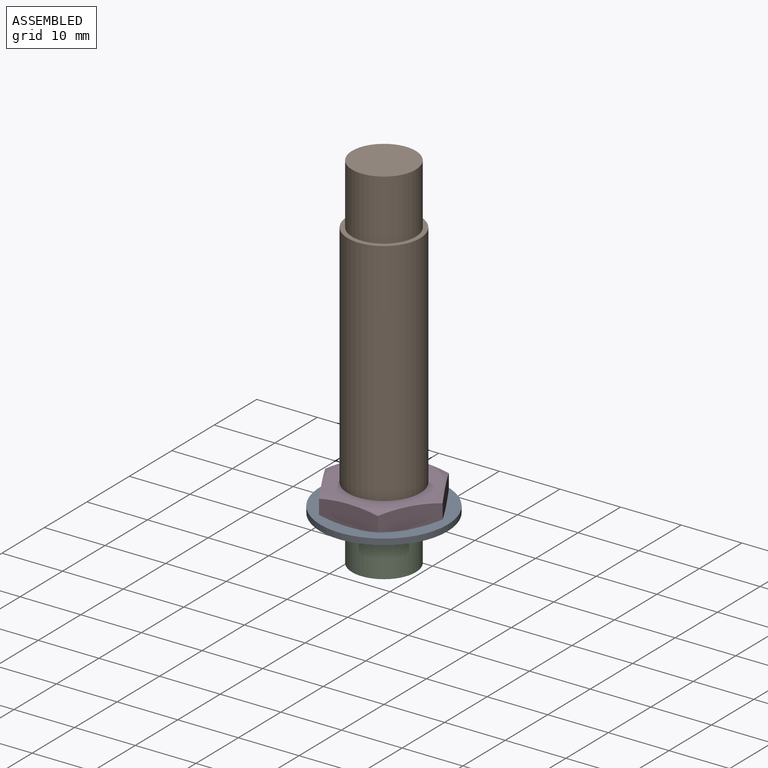
[diagram: assembled view]
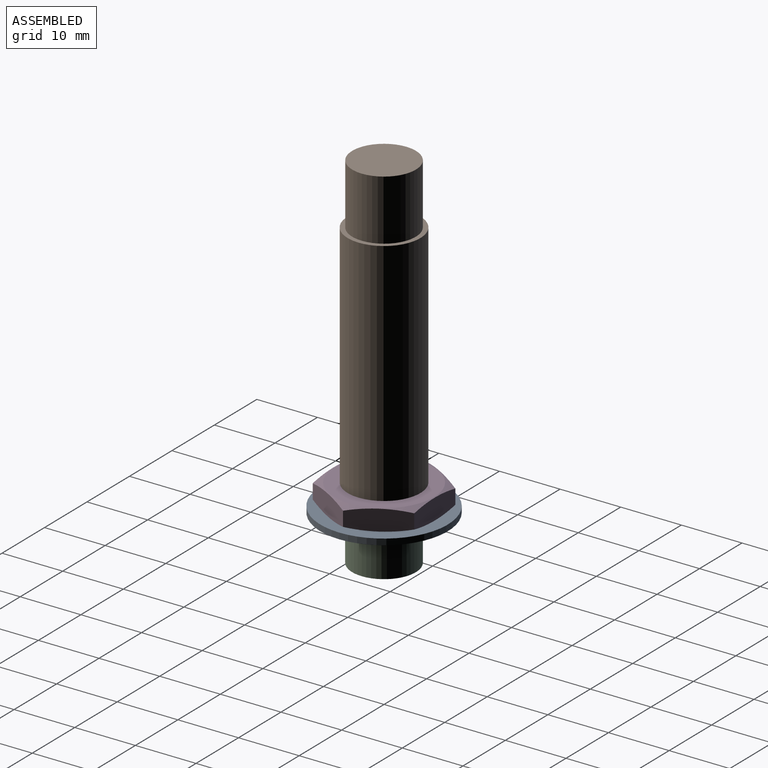
[diagram: assembled view, second angle]
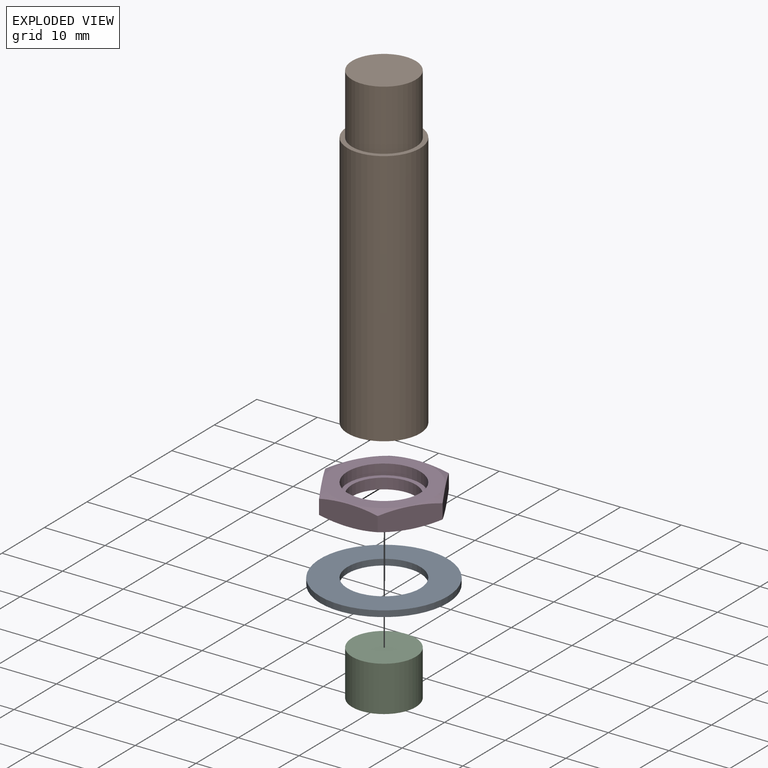
[diagram: exploded view]
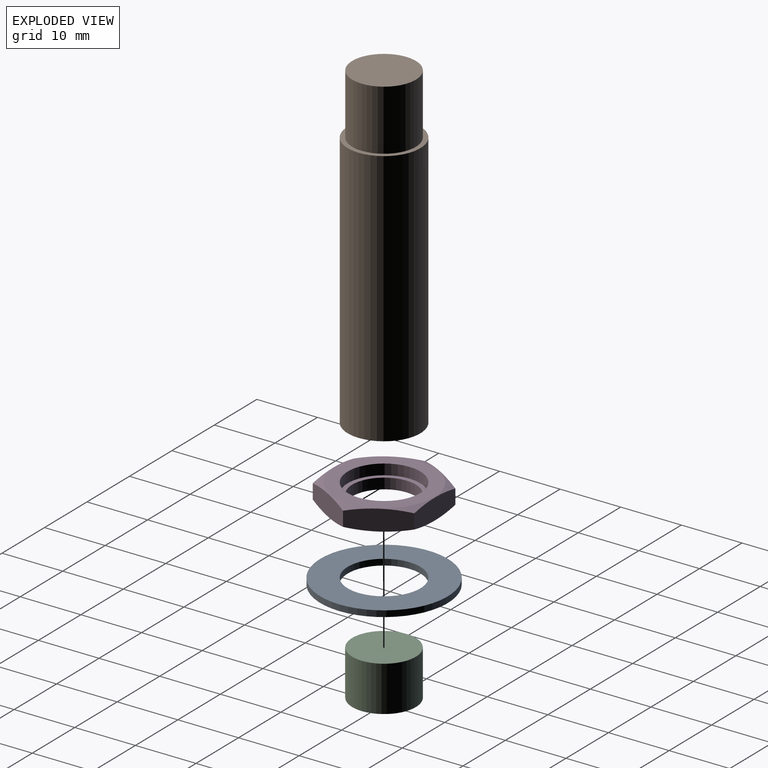
[diagram: exploded view, second angle]
ASSEMBLY  parts=4 mates=3
PART A: 4 faces, bbox 21x21x1 mm
  f0: cylinder r=6mm len=12mm, axis (0,0,-1), area 37.7mm2, adj f2,f3
  f1: cylinder r=10.5mm len=21mm, axis (0,0,-1), area 66mm2, adj f2,f3
  f2: plane 21x21mm, normal (0,0,1), area 233.3mm2, adj f0,f1
  f3: plane 21x21mm, normal (0,0,-1), area 233.3mm2, adj f0,f1
PART B: 5 faces, bbox 12x12x52.5 mm
  f0: cylinder r=6mm len=42.5mm, axis (0,0,-1), area 1602.2mm2, adj f1,f2
  f1: plane 12x12mm, normal (0,0,1), area 26.5mm2, adj f0,f3
  f2: plane 12x12mm, normal (0,0,-1), area 113.1mm2, adj f0
  f3: cylinder r=5.25mm len=10.5mm, axis (0,0,-1), area 329.9mm2, adj f1,f4
  f4: plane 10.5x10.5mm, normal (0,0,1), area 86.6mm2, adj f3
PART C: 3 faces, bbox 10.5x10.5x7.5 mm
  f0: cylinder r=5.25mm len=10.5mm, axis (0,0,1), area 247.4mm2, adj f1,f2
  f1: plane 10.5x10.5mm, normal (0,0,-1), area 86.6mm2, adj f0
  f2: plane 10.5x10.5mm, normal (0,0,1), area 86.6mm2, adj f0
PART D: 13 faces, bbox 19.3x19.3x3.5 mm
  f0: cylinder r=5.25mm len=10.5mm, axis (0,0,-1), area 57.7mm2, adj f2,f12
  f1: plane 16.5x16.5mm, normal (0,0,1), area 100.7mm2, adj f4,f11
  f2: plane 16.5x16.5mm, normal (0,0,-1), area 127.2mm2, adj f0,f3
  f3: sphere r=25mm, area 31.2mm2, adj f2,f5,f6,f7,f8,f9,f10
  f4: sphere r=25mm, area 31.2mm2, adj f1,f5,f6,f7,f8,f9,f10
  f5: plane 8.38x4.84mm, normal (0.87,0.5,0), area 29.8mm2, adj f3,f4,f6,f10
  f6: plane 8.38x4.84mm, normal (0.87,-0.5,0), area 29.8mm2, adj f3,f4,f5,f7
  f7: plane 9.67x3.41mm, normal (0,-1,0), area 29.8mm2, adj f3,f4,f6,f8
  f8: plane 8.38x4.84mm, normal (-0.87,-0.5,0), area 29.8mm2, adj f3,f4,f7,f9
  f9: plane 8.38x4.84mm, normal (-0.87,0.5,0), area 29.8mm2, adj f3,f4,f8,f10
  f10: plane 9.67x3.41mm, normal (0,1,0), area 29.8mm2, adj f3,f4,f5,f9
  f11: cylinder r=6mm len=12mm, axis (0,0,-1), area 66mm2, adj f1,f12
  f12: plane 12x12mm, normal (0,0,1), area 26.5mm2, adj f0,f11
PLACE A at identity
PLACE B at identity fixed
PLACE C at identity
PLACE D t=(0,0,2.75)mm
MATE fastened D.f0 <-> A.f0  axis (0,0,-1) through (0,0,1)mm
MATE fastened C.f0 <-> B.f0  axis (0,0,1) through (0,0,0)mm
MATE fastened C.f0 <-> A.f0  axis (0,0,1) through (0,0,0)mm
